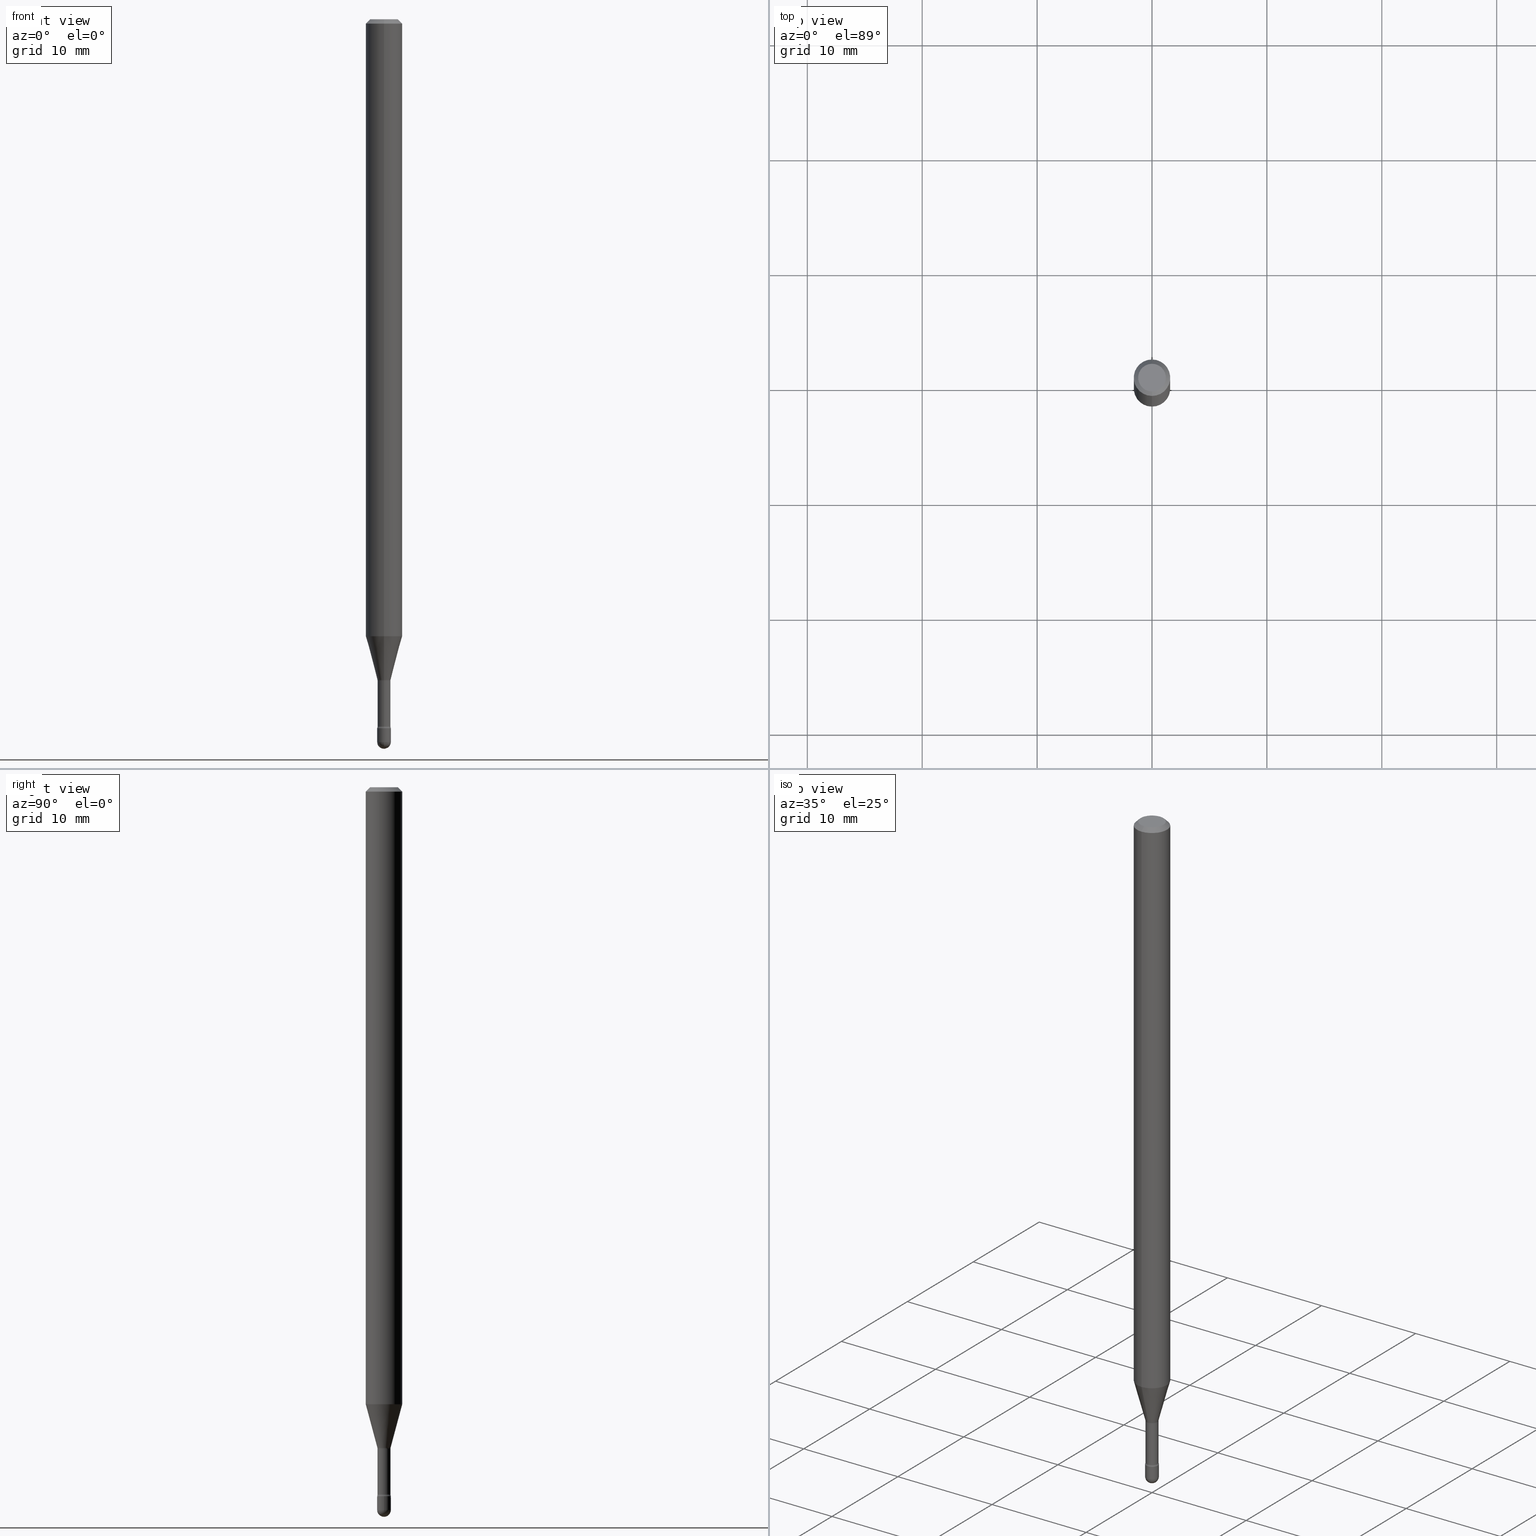
[diagram: canonical four-view strip — front | top / right | iso, engineering-drawing reading convention]
A machine part, canonical four-view strip (front | top / right | iso — engineering-drawing reading convention). The complete STEP part file that produces these views, byte-faithful:
ISO-10303-21;
HEADER;
FILE_DESCRIPTION (( 'STEP AP203' ),
    '1' );
FILE_NAME ('09474.STEP',
    '2024-04-09T23:35:45',
    ( '' ),
    ( '' ),
    'SwSTEP 2.0',
    'SolidWorks 2023',
    '' );
FILE_SCHEMA (( 'CONFIG_CONTROL_DESIGN' ));
ENDSEC;

DATA;
#1 = CARTESIAN_POINT ( 'NONE',  ( 2.023465601364097511E-45, -2.889165055145571576E-31, -8.274621583700891195E-17 ) ) ;
#2 = EDGE_CURVE ( 'NONE', #538, #33, #144, .T. ) ;
#3 = PERSON_AND_ORGANIZATION ( #182, #480 ) ;
#4 = CIRCLE ( 'NONE', #208, 0.02350000000000000352 ) ;
#5 = VECTOR ( 'NONE', #119, 39.37007874015749564 ) ;
#6 = APPROVAL_PERSON_ORGANIZATION ( #193, #449, #15 ) ;
#7 = CARTESIAN_POINT ( 'NONE',  ( 6.056203498517491033E-29, -8.646653535645050331E-15, -2.476500000000000146 ) ) ;
#8 = DATE_TIME_ROLE ( 'classification_date' ) ;
#9 = DIRECTION ( 'NONE',  ( 4.937700262164548042E-15, 0.7071067811865451302, -0.7071067811865499042 ) ) ;
#10 = SHAPE_DEFINITION_REPRESENTATION ( #338, #107 ) ;
#11 = ORIENTED_EDGE ( 'NONE', *, *, #500, .T. ) ;
#12 = VECTOR ( 'NONE', #517, 39.37007874015748143 ) ;
#13 = APPROVAL_PERSON_ORGANIZATION ( #224, #380, #561 ) ;
#14 = DIRECTION ( 'NONE',  ( -2.445468806185136597E-29, 3.491481338843145583E-15, 1.000000000000000000 ) ) ;
#15 = APPROVAL_ROLE ( '' ) ;
#16 = ORIENTED_EDGE ( 'NONE', *, *, #367, .F. ) ;
#17 = DIRECTION ( 'NONE',  ( -2.445456806742390166E-29, 3.491498522728124281E-15, 1.000000000000000000 ) ) ;
#18 = ORIENTED_EDGE ( 'NONE', *, *, #249, .T. ) ;
#19 = DIRECTION ( 'NONE',  ( -2.445456806742390166E-29, 3.491498522728124281E-15, 1.000000000000000000 ) ) ;
#20 = ORIENTED_EDGE ( 'NONE', *, *, #464, .T. ) ;
#21 = ADVANCED_FACE ( 'NONE', ( #213 ), #186, .F. ) ;
#22 = CIRCLE ( 'NONE', #518, 0.02349999999999995148 ) ;
#23 = AXIS2_PLACEMENT_3D ( 'NONE', #477, #309, #88 ) ;
#24 = DIRECTION ( 'NONE',  ( -6.982962677686265922E-15, -1.000000000000000000, 3.483106191921935554E-15 ) ) ;
#25 = LINE ( 'NONE', #451, #334 ) ;
#26 = CARTESIAN_POINT ( 'NONE',  ( 5.543816127150929473E-29, -7.915100166057801279E-15, -2.266974787463810870 ) ) ;
#27 = ORIENTED_EDGE ( 'NONE', *, *, #277, .F. ) ;
#28 = AXIS2_PLACEMENT_3D ( 'NONE', #499, #378, #289 ) ;
#29 = LINE ( 'NONE', #327, #274 ) ;
#30 = DIRECTION ( 'NONE',  ( -2.445468806185136877E-29, 3.491481338843145188E-15, 1.000000000000000000 ) ) ;
#31 = ORIENTED_EDGE ( 'NONE', *, *, #2, .F. ) ;
#32 = CC_DESIGN_PERSON_AND_ORGANIZATION_ASSIGNMENT ( #565, #488, ( #469 ) ) ;
#33 = VERTEX_POINT ( 'NONE', #136 ) ;
#34 = CARTESIAN_POINT ( 'NONE',  ( 5.940043730223697314E-29, -8.480808172050001970E-15, -2.429000000000000270 ) ) ;
#35 = ORIENTED_EDGE ( 'NONE', *, *, #249, .F. ) ;
#36 = PERSON_AND_ORGANIZATION_ROLE ( 'design_supplier' ) ;
#37 = ORIENTED_EDGE ( 'NONE', *, *, #355, .T. ) ;
#38 = ADVANCED_FACE ( 'NONE', ( #562 ), #439, .T. ) ;
#39 = FACE_OUTER_BOUND ( 'NONE', #150, .T. ) ;
#40 = AXIS2_PLACEMENT_3D ( 'NONE', #205, #168, #329 ) ;
#41 = DATE_AND_TIME ( #299, #139 ) ;
#42 = EDGE_LOOP ( 'NONE', ( #110, #207, #438, #134 ) ) ;
#43 = APPLICATION_PROTOCOL_DEFINITION ( 'international standard', 'config_control_design', 1994, #462 ) ;
#44 =( CONVERSION_BASED_UNIT ( 'INCH', #436 ) LENGTH_UNIT ( ) NAMED_UNIT ( #308 ) );
#45 = DATE_AND_TIME ( #428, #393 ) ;
#46 = CARTESIAN_POINT ( 'NONE',  ( 5.924540425438438156E-29, -8.458756697819860632E-15, -2.422672283192177645 ) ) ;
#47 = ADVANCED_FACE ( 'NONE', ( #459 ), #72, .T. ) ;
#48 = AXIS2_PLACEMENT_3D ( 'NONE', #180, #348, #524 ) ;
#49 = CIRCLE ( 'NONE', #316, 0.01500000000000002720 ) ;
#50 = LOCAL_TIME ( 19, 35, 45.00000000000000000, #323 ) ;
#51 = LINE ( 'NONE', #151, #344 ) ;
#52 = DATE_AND_TIME ( #537, #50 ) ;
#53 = CARTESIAN_POINT ( 'NONE',  ( 3.023754139721258091E-16, 0.02261111260565609044, -2.263092501787272948 ) ) ;
#54 = APPROVAL_DATE_TIME ( #52, #449 ) ;
#55 = ORIENTED_EDGE ( 'NONE', *, *, #465, .F. ) ;
#56 = CIRCLE ( 'NONE', #210, 0.04749999999999999362 ) ;
#57 = LOCAL_TIME ( 19, 35, 45.00000000000000000, #313 ) ;
#58 = PERSON_AND_ORGANIZATION_ROLE ( 'classification_officer' ) ;
#59 = CARTESIAN_POINT ( 'NONE',  ( 0.02350000000000000699, -8.727830476773153796E-15, -2.476500000000000590 ) ) ;
#60 = VERTEX_POINT ( 'NONE', #53 ) ;
#61 = ORIENTED_EDGE ( 'NONE', *, *, #99, .F. ) ;
#62 = FACE_OUTER_BOUND ( 'NONE', #406, .T. ) ;
#63 = CC_DESIGN_DATE_AND_TIME_ASSIGNMENT ( #394, #8, ( #227 ) ) ;
#64 = EDGE_LOOP ( 'NONE', ( #113, #347, #340, #132 ) ) ;
#65 = DIRECTION ( 'NONE',  ( -2.445456806742390166E-29, 3.491498522728124281E-15, 1.000000000000000000 ) ) ;
#66 = CARTESIAN_POINT ( 'NONE',  ( -1.543234751768667333E-16, -0.02210000000000003628, 5.552355162435376952E-16 ) ) ;
#67 = AXIS2_PLACEMENT_3D ( 'NONE', #165, #290, #154 ) ;
#68 = CARTESIAN_POINT ( 'NONE',  ( 5.534294962783350843E-29, -7.901584126787359375E-15, -2.263092501787272948 ) ) ;
#69 = EDGE_LOOP ( 'NONE', ( #61, #446, #493, #167 ) ) ;
#70 = DIRECTION ( 'NONE',  ( -2.445456806742389886E-29, 3.491498522728124281E-15, 1.000000000000000000 ) ) ;
#71 = EDGE_CURVE ( 'NONE', #221, #206, #4, .T. ) ;
#72 = CYLINDRICAL_SURFACE ( 'NONE', #226, 0.06250000000000000000 ) ;
#73 = CARTESIAN_POINT ( 'NONE',  ( 5.543788924716759696E-29, -7.915139121491799503E-15, -2.266974787463810870 ) ) ;
#74 = ORIENTED_EDGE ( 'NONE', *, *, #293, .F. ) ;
#75 = AXIS2_PLACEMENT_3D ( 'NONE', #236, #17, #285 ) ;
#76 = AXIS2_PLACEMENT_3D ( 'NONE', #314, #189, #426 ) ;
#77 = DIRECTION ( 'NONE',  ( -6.982962677686266711E-15, -1.000000000000000000, 3.491498522728124676E-15 ) ) ;
#78 = VERTEX_POINT ( 'NONE', #59 ) ;
#79 = FACE_OUTER_BOUND ( 'NONE', #42, .T. ) ;
#80 = DIRECTION ( 'NONE',  ( -2.445456806742390166E-29, 3.491498522728124281E-15, 1.000000000000000000 ) ) ;
#81 = CARTESIAN_POINT ( 'NONE',  ( 5.924540425438438156E-29, -8.458756697819860632E-15, -2.422672283192177645 ) ) ;
#82 = DIRECTION ( 'NONE',  ( 7.105427357601001859E-15, 1.000000000000000000, 0.000000000000000000 ) ) ;
#83 = CARTESIAN_POINT ( 'NONE',  ( -2.590679153421016779E-16, -0.03710000000000852199, -2.422672283192177645 ) ) ;
#84 = DIRECTION ( 'NONE',  ( -2.445456806742390166E-29, 3.491498522728124281E-15, 1.000000000000000000 ) ) ;
#85 = EDGE_CURVE ( 'NONE', #60, #381, #375, .T. ) ;
#86 = DIRECTION ( 'NONE',  ( -2.445456806742390166E-29, 3.491498522728124281E-15, 1.000000000000000000 ) ) ;
#87 = DIRECTION ( 'NONE',  ( 1.000000000000000000, -7.105427357601001070E-15, 4.926315718983979931E-29 ) ) ;
#88 = DIRECTION ( 'NONE',  ( 6.982962677686265922E-15, 1.000000000000000000, 0.000000000000000000 ) ) ;
#89 = CLOSED_SHELL ( 'NONE', ( #387, #372, #166, #265, #548, #501, #38, #47, #528, #346, #473, #21, #140, #269 ) ) ;
#90 = AXIS2_PLACEMENT_3D ( 'NONE', #270, #310, #425 ) ;
#91 = EDGE_CURVE ( 'NONE', #60, #155, #448, .T. ) ;
#92 = DIRECTION ( 'NONE',  ( -6.982962677686265922E-15, -1.000000000000000000, 3.483106191921935554E-15 ) ) ;
#93 = PLANE ( 'NONE',  #145 ) ;
#94 = ADVANCED_FACE ( 'NONE', ( #388 ), #147, .T. ) ;
#95 = EDGE_CURVE ( 'NONE', #60, #412, #525, .T. ) ;
#96 = CIRCLE ( 'NONE', #219, 0.02350000000000000699 ) ;
#97 = CIRCLE ( 'NONE', #220, 0.01499999999999999424 ) ;
#98 = CARTESIAN_POINT ( 'NONE',  ( -1.169113584055446105E-44, 1.669184350826100908E-30, 4.780733988912460139E-16 ) ) ;
#99 = EDGE_CURVE ( 'NONE', #538, #298, #549, .T. ) ;
#100 = CARTESIAN_POINT ( 'NONE',  ( -1.543234751768077413E-16, -0.02210000000000852949, -2.422672283192177645 ) ) ;
#101 = EDGE_LOOP ( 'NONE', ( #519, #376, #204, #74 ) ) ;
#102 = CARTESIAN_POINT ( 'NONE',  ( 5.940014583577266287E-29, -8.480849911706614347E-15, -2.429000000000000270 ) ) ;
#103 = ORIENTED_EDGE ( 'NONE', *, *, #251, .F. ) ;
#104 = VECTOR ( 'NONE', #30, 39.37007874015748143 ) ;
#105 = EDGE_CURVE ( 'NONE', #298, #556, #115, .T. ) ;
#106 = AXIS2_PLACEMENT_3D ( 'NONE', #34, #124, #481 ) ;
#107 = ADVANCED_BREP_SHAPE_REPRESENTATION ( '09474', ( #536, #354, #90 ), #526 ) ;
#108 = LOCAL_TIME ( 19, 35, 45.00000000000000000, #152 ) ;
#109 = DIRECTION ( 'NONE',  ( -6.982962677686265922E-15, -1.000000000000000000, 3.491498522728123492E-15 ) ) ;
#110 = ORIENTED_EDGE ( 'NONE', *, *, #171, .F. ) ;
#111 = DIRECTION ( 'NONE',  ( -2.445456806742390166E-29, 3.491498522728124281E-15, 1.000000000000000000 ) ) ;
#112 = DIRECTION ( 'NONE',  ( -2.445456806742390166E-29, 3.491498522728124281E-15, 1.000000000000000000 ) ) ;
#113 = ORIENTED_EDGE ( 'NONE', *, *, #359, .T. ) ;
#114 = CARTESIAN_POINT ( 'NONE',  ( 5.170246277632214068E-29, -7.381813978771733326E-15, -2.114225147374217961 ) ) ;
#115 = LINE ( 'NONE', #66, #12 ) ;
#116 = CIRCLE ( 'NONE', #365, 0.06250000000000000000 ) ;
#117 = SPHERICAL_SURFACE ( 'NONE', #452, 0.02349999999999995148 ) ;
#118 = CARTESIAN_POINT ( 'NONE',  ( 6.114676835852627231E-29, -8.727264387118866723E-15, -2.500000000000000000 ) ) ;
#119 = DIRECTION ( 'NONE',  ( -1.807323732225328562E-15, -0.2588190451025179639, 0.9659258262890689783 ) ) ;
#120 = CARTESIAN_POINT ( 'NONE',  ( 2.636113549670568339E-16, 0.03709999999999160497, -2.422672283192177645 ) ) ;
#121 = CYLINDRICAL_SURFACE ( 'NONE', #190, 0.02350000000000000352 ) ;
#122 = DIRECTION ( 'NONE',  ( -2.445456806742390166E-29, 3.491498522728124281E-15, 1.000000000000000000 ) ) ;
#123 = EDGE_CURVE ( 'NONE', #328, #302, #25, .T. ) ;
#124 = DIRECTION ( 'NONE',  ( -2.438088387897960049E-29, 3.491481338843145188E-15, 1.000000000000000000 ) ) ;
#125 = EDGE_LOOP ( 'NONE', ( #11, #20 ) ) ;
#126 = DIRECTION ( 'NONE',  ( -2.445456806742389886E-29, 3.491498522728124281E-15, 1.000000000000000000 ) ) ;
#127 = AXIS2_PLACEMENT_3D ( 'NONE', #476, #86, #291 ) ;
#128 = EDGE_CURVE ( 'NONE', #281, #78, #162, .T. ) ;
#129 = AXIS2_PLACEMENT_3D ( 'NONE', #81, #559, #422 ) ;
#130 = ORIENTED_EDGE ( 'NONE', *, *, #293, .T. ) ;
#131 = DIRECTION ( 'NONE',  ( -2.445456806742390166E-29, 3.491498522728124281E-15, 1.000000000000000000 ) ) ;
#132 = ORIENTED_EDGE ( 'NONE', *, *, #355, .F. ) ;
#133 = EDGE_CURVE ( 'NONE', #412, #556, #494, .T. ) ;
#134 = ORIENTED_EDGE ( 'NONE', *, *, #133, .F. ) ;
#135 = APPROVAL_DATE_TIME ( #45, #380 ) ;
#136 = CARTESIAN_POINT ( 'NONE',  ( 1.669775429036828812E-16, 0.02349999999999151726, -2.429000000000000270 ) ) ;
#137 = FACE_OUTER_BOUND ( 'NONE', #64, .T. ) ;
#138 = CIRCLE ( 'NONE', #402, 0.02350000000000000352 ) ;
#139 = LOCAL_TIME ( 19, 35, 45.00000000000000000, #527 ) ;
#140 = ADVANCED_FACE ( 'NONE', ( #79 ), #337, .T. ) ;
#141 = APPROVAL_DATE_TIME ( #41, #237 ) ;
#142 = CARTESIAN_POINT ( 'NONE',  ( 1.620037437533623579E-16, 0.02209999999999160900, -2.422672283192177645 ) ) ;
#143 = ADVANCED_FACE ( 'NONE', ( #514 ), #121, .T. ) ;
#144 = CIRCLE ( 'NONE', #306, 0.01499999999999999424 ) ;
#145 = AXIS2_PLACEMENT_3D ( 'NONE', #492, #70, #370 ) ;
#146 =( NAMED_UNIT ( * ) PLANE_ANGLE_UNIT ( ) SI_UNIT ( $, .RADIAN. ) );
#147 = CYLINDRICAL_SURFACE ( 'NONE', #432, 0.02350000000000000352 ) ;
#148 = CALENDAR_DATE ( 2024, 9, 4 ) ;
#149 = PRODUCT_DEFINITION ( 'UNKNOWN', '', #469, #163 ) ;
#150 = EDGE_LOOP ( 'NONE', ( #194, #262 ) ) ;
#151 = CARTESIAN_POINT ( 'NONE',  ( 4.364351673553919652E-16, 0.06249999999999995143, -0.01500000000000030129 ) ) ;
#152 = COORDINATED_UNIVERSAL_TIME_OFFSET ( 5, 0, .BEHIND. ) ;
#153 = AXIS2_PLACEMENT_3D ( 'NONE', #217, #484, #222 ) ;
#154 = DIRECTION ( 'NONE',  ( 6.982962677686265922E-15, 1.000000000000000000, 0.000000000000000000 ) ) ;
#155 = VERTEX_POINT ( 'NONE', #545 ) ;
#156 = PRODUCT_RELATED_PRODUCT_CATEGORY ( 'detail', '', ( #196 ) ) ;
#157 = DIRECTION ( 'NONE',  ( -6.982962677686265922E-15, -1.000000000000000000, 0.000000000000000000 ) ) ;
#158 = ORIENTED_EDGE ( 'NONE', *, *, #464, .F. ) ;
#159 = DIRECTION ( 'NONE',  ( -6.982962677686265922E-15, -1.000000000000000000, 0.000000000000000000 ) ) ;
#160 = ADVANCED_FACE ( 'NONE', ( #504 ), #117, .T. ) ;
#161 = DIRECTION ( 'NONE',  ( -2.445456806742390166E-29, 3.491498522728124281E-15, 1.000000000000000000 ) ) ;
#162 = CIRCLE ( 'NONE', #28, 0.02350000000000000699 ) ;
#163 = DESIGN_CONTEXT ( 'detailed design', #434, 'design' ) ;
#164 = CC_DESIGN_APPROVAL ( #380, ( #149 ) ) ;
#165 = CARTESIAN_POINT ( 'NONE',  ( 6.056203498517491033E-29, -8.646653535645050331E-15, -2.476500000000000146 ) ) ;
#166 = ADVANCED_FACE ( 'NONE', ( #248 ), #392, .F. ) ;
#167 = ORIENTED_EDGE ( 'NONE', *, *, #513, .F. ) ;
#168 = DIRECTION ( 'NONE',  ( -2.445468806185136597E-29, 3.491481338843145583E-15, 1.000000000000000000 ) ) ;
#169 = DIRECTION ( 'NONE',  ( -2.445456806742390166E-29, 3.491498522728124281E-15, 1.000000000000000000 ) ) ;
#170 = ORIENTED_EDGE ( 'NONE', *, *, #502, .T. ) ;
#171 = EDGE_CURVE ( 'NONE', #538, #412, #267, .T. ) ;
#172 = CARTESIAN_POINT ( 'NONE',  ( 5.170246277632214068E-29, -7.381813978771733326E-15, -2.114225147374217961 ) ) ;
#173 = EDGE_LOOP ( 'NONE', ( #472, #516, #130, #382 ) ) ;
#174 = DIRECTION ( 'NONE',  ( -6.982962677686266711E-15, -1.000000000000000000, 3.491498522728124676E-15 ) ) ;
#175 = CC_DESIGN_PERSON_AND_ORGANIZATION_ASSIGNMENT ( #431, #36, ( #469 ) ) ;
#176 = CONICAL_SURFACE ( 'NONE', #192, 0.02261111260566398690, 0.2617993877991501295 ) ;
#177 = DIRECTION ( 'NONE',  ( -6.982962677686265922E-15, -1.000000000000000000, 3.491498522728124281E-15 ) ) ;
#178 = ORIENTED_EDGE ( 'NONE', *, *, #311, .F. ) ;
#179 = PERSON_AND_ORGANIZATION_ROLE ( 'creator' ) ;
#180 = CARTESIAN_POINT ( 'NONE',  ( 5.924569496155794395E-29, -8.458715066898005273E-15, -2.422672283192177645 ) ) ;
#181 = ORIENTED_EDGE ( 'NONE', *, *, #218, .T. ) ;
#182 = PERSON ( 'UNSPECIFIED', 'UNSPECIFIED', 'UNSPECIFIED', ('UNSPECIFIED'), ('UNSPECIFIED'), ('UNSPECIFIED') ) ;
#183 = DIRECTION ( 'NONE',  ( -1.000000000000000000, 7.105427357601001070E-15, -4.926315508542082329E-29 ) ) ;
#184 = DIRECTION ( 'NONE',  ( -2.445456806742390166E-29, 3.491498522728124281E-15, 1.000000000000000000 ) ) ;
#185 = LINE ( 'NONE', #215, #413 ) ;
#186 = TOROIDAL_SURFACE ( 'NONE', #48, 0.03710000000000006348, 0.01499999999999999424 ) ;
#187 = DATE_AND_TIME ( #418, #57 ) ;
#188 = PERSON_AND_ORGANIZATION_ROLE ( 'design_owner' ) ;
#189 = DIRECTION ( 'NONE',  ( 2.445456806742390166E-29, -3.491498522728124281E-15, -1.000000000000000000 ) ) ;
#190 = AXIS2_PLACEMENT_3D ( 'NONE', #257, #368, #456 ) ;
#191 = ORIENTED_EDGE ( 'NONE', *, *, #211, .F. ) ;
#192 = AXIS2_PLACEMENT_3D ( 'NONE', #305, #122, #414 ) ;
#193 = PERSON_AND_ORGANIZATION ( #182, #480 ) ;
#194 = ORIENTED_EDGE ( 'NONE', *, *, #71, .T. ) ;
#195 = CYLINDRICAL_SURFACE ( 'NONE', #263, 0.02210000000000003628 ) ;
#196 = PRODUCT ( '09474', '09474', '', ( #482 ) ) ;
#197 = LINE ( 'NONE', #555, #104 ) ;
#198 = AXIS2_PLACEMENT_3D ( 'NONE', #333, #161, #553 ) ;
#199 = CIRCLE ( 'NONE', #522, 0.06250000000000000000 ) ;
#200 = CC_DESIGN_SECURITY_CLASSIFICATION ( #227, ( #469 ) ) ;
#201 = DIRECTION ( 'NONE',  ( 2.445456806742389886E-29, -3.491498522728124281E-15, -1.000000000000000000 ) ) ;
#202 = EDGE_CURVE ( 'NONE', #471, #281, #22, .T. ) ;
#203 = CARTESIAN_POINT ( 'NONE',  ( -4.364351673553400976E-16, -0.06250000000000741074, -2.114225147374217517 ) ) ;
#204 = ORIENTED_EDGE ( 'NONE', *, *, #133, .T. ) ;
#205 = CARTESIAN_POINT ( 'NONE',  ( 6.056203498517492154E-29, -8.646653535645053486E-15, -2.476500000000000590 ) ) ;
#206 = VERTEX_POINT ( 'NONE', #304 ) ;
#207 = ORIENTED_EDGE ( 'NONE', *, *, #99, .T. ) ;
#208 = AXIS2_PLACEMENT_3D ( 'NONE', #445, #397, #362 ) ;
#209 = DIRECTION ( 'NONE',  ( -6.982962677686265133E-15, -1.000000000000000000, 0.000000000000000000 ) ) ;
#210 = AXIS2_PLACEMENT_3D ( 'NONE', #1, #184, #77 ) ;
#211 = EDGE_CURVE ( 'NONE', #206, #221, #547, .T. ) ;
#212 = DIRECTION ( 'NONE',  ( -2.445468806185136877E-29, 3.491481338843145188E-15, 1.000000000000000000 ) ) ;
#213 = FACE_OUTER_BOUND ( 'NONE', #534, .T. ) ;
#214 = ORIENTED_EDGE ( 'NONE', *, *, #374, .T. ) ;
#215 = CARTESIAN_POINT ( 'NONE',  ( 4.440892098500625669E-16, 0.06250000000000000000, 2.598547412207382957E-16 ) ) ;
#216 = EDGE_LOOP ( 'NONE', ( #55, #557, #366, #441 ) ) ;
#217 = CARTESIAN_POINT ( 'NONE',  ( 5.924569496155794395E-29, -8.458715066898005273E-15, -2.422672283192177645 ) ) ;
#218 = EDGE_CURVE ( 'NONE', #254, #369, #51, .T. ) ;
#219 = AXIS2_PLACEMENT_3D ( 'NONE', #253, #551, #411 ) ;
#220 = AXIS2_PLACEMENT_3D ( 'NONE', #83, #341, #209 ) ;
#221 = VERTEX_POINT ( 'NONE', #319 ) ;
#222 = DIRECTION ( 'NONE',  ( -6.982962677686265922E-15, -1.000000000000000000, 3.491498522728124281E-15 ) ) ;
#223 = CARTESIAN_POINT ( 'NONE',  ( -1.640996229255678655E-16, -0.02350000000000847938, -2.429000000000000270 ) ) ;
#224 = PERSON_AND_ORGANIZATION ( #182, #480 ) ;
#225 = CARTESIAN_POINT ( 'NONE',  ( 1.570299446029823742E-16, 0.02210000000000003628, 4.009112815389543820E-16 ) ) ;
#226 = AXIS2_PLACEMENT_3D ( 'NONE', #292, #169, #336 ) ;
#227 = SECURITY_CLASSIFICATION ( '', '', #228 ) ;
#228 = SECURITY_CLASSIFICATION_LEVEL ( 'unclassified' ) ;
#229 = CARTESIAN_POINT ( 'NONE',  ( 5.940014583577266287E-29, -8.480849911706614347E-15, -2.429000000000000270 ) ) ;
#230 = CARTESIAN_POINT ( 'NONE',  ( 0.000000000000000000, 0.000000000000000000, 0.000000000000000000 ) ) ;
#231 =( LENGTH_UNIT ( ) NAMED_UNIT ( * ) SI_UNIT ( $, .METRE. ) );
#232 = CARTESIAN_POINT ( 'NONE',  ( -4.364351673553912750E-16, -0.06250000000000005551, -0.01499999999999986587 ) ) ;
#233 = AXIS2_PLACEMENT_3D ( 'NONE', #421, #87, #312 ) ;
#234 = VECTOR ( 'NONE', #410, 39.37007874015748143 ) ;
#235 = EDGE_CURVE ( 'NONE', #454, #33, #138, .T. ) ;
#236 = CARTESIAN_POINT ( 'NONE',  ( 5.534294962783350843E-29, -7.901584126787359375E-15, -2.263092501787272948 ) ) ;
#237 = APPROVAL ( #303, 'UNSPECIFIED' ) ;
#238 = EDGE_LOOP ( 'NONE', ( #158, #455, #170, #468 ) ) ;
#239 = DIRECTION ( 'NONE',  ( -2.445456806742390166E-29, 3.491498522728124281E-15, 1.000000000000000000 ) ) ;
#240 = ORIENTED_EDGE ( 'NONE', *, *, #282, .T. ) ;
#241 = FACE_OUTER_BOUND ( 'NONE', #173, .T. ) ;
#242 = EDGE_LOOP ( 'NONE', ( #16, #326, #407, #521, #191 ) ) ;
#243 = CONICAL_SURFACE ( 'NONE', #531, 0.06250000000000000000, 0.7853981633974483900 ) ;
#244 = AXIS2_PLACEMENT_3D ( 'NONE', #98, #532, #275 ) ;
#245 = CARTESIAN_POINT ( 'NONE',  ( 1.640996229256876491E-16, 0.02349999999999132991, -2.476500000000000590 ) ) ;
#246 = ORIENTED_EDGE ( 'NONE', *, *, #513, .T. ) ;
#247 = DIRECTION ( 'NONE',  ( -6.982962677686265922E-15, -1.000000000000000000, 4.370956789862821150E-15 ) ) ;
#248 = FACE_OUTER_BOUND ( 'NONE', #69, .T. ) ;
#249 = EDGE_CURVE ( 'NONE', #78, #400, #96, .T. ) ;
#250 = ORIENTED_EDGE ( 'NONE', *, *, #105, .F. ) ;
#251 = EDGE_CURVE ( 'NONE', #78, #221, #197, .T. ) ;
#252 = CARTESIAN_POINT ( 'NONE',  ( -4.287811248607203282E-16, -0.06250000000000005551, -0.01499999999999986587 ) ) ;
#253 = CARTESIAN_POINT ( 'NONE',  ( 6.056203498517492154E-29, -8.646653535645053486E-15, -2.476500000000000590 ) ) ;
#254 = VERTEX_POINT ( 'NONE', #339 ) ;
#255 = AXIS2_PLACEMENT_3D ( 'NONE', #330, #201, #544 ) ;
#256 = ORIENTED_EDGE ( 'NONE', *, *, #529, .F. ) ;
#257 = CARTESIAN_POINT ( 'NONE',  ( 0.000000000000000000, 0.000000000000000000, 0.000000000000000000 ) ) ;
#258 = PERSON_AND_ORGANIZATION ( #182, #480 ) ;
#259 = CARTESIAN_POINT ( 'NONE',  ( -1.669775429035627771E-16, -0.02350000000000862510, -2.476500000000000590 ) ) ;
#260 = FACE_OUTER_BOUND ( 'NONE', #416, .T. ) ;
#261 = APPROVAL_STATUS ( 'not_yet_approved' ) ;
#262 = ORIENTED_EDGE ( 'NONE', *, *, #211, .T. ) ;
#263 = AXIS2_PLACEMENT_3D ( 'NONE', #554, #239, #109 ) ;
#264 = CARTESIAN_POINT ( 'NONE',  ( -3.773273898774340269E-16, -0.04749999999999999362, 8.309996399257698746E-17 ) ) ;
#265 = ADVANCED_FACE ( 'NONE', ( #515 ), #243, .T. ) ;
#266 = COORDINATED_UNIVERSAL_TIME_OFFSET ( 5, 0, .BEHIND. ) ;
#267 = LINE ( 'NONE', #225, #307 ) ;
#268 = EDGE_CURVE ( 'NONE', #351, #281, #288, .T. ) ;
#269 = ADVANCED_FACE ( 'NONE', ( #241 ), #360, .F. ) ;
#270 = CARTESIAN_POINT ( 'NONE',  ( 0.000000000000000000, 0.000000000000000000, 0.000000000000000000 ) ) ;
#271 = DIRECTION ( 'NONE',  ( -2.445456806742389886E-29, 3.491498522728124281E-15, 1.000000000000000000 ) ) ;
#272 = AXIS2_PLACEMENT_3D ( 'NONE', #539, #535, #442 ) ;
#273 = DIRECTION ( 'NONE',  ( 1.000000000000000000, -6.982962677686265922E-15, 4.876176775795935793E-29 ) ) ;
#274 = VECTOR ( 'NONE', #212, 39.37007874015748143 ) ;
#275 = DIRECTION ( 'NONE',  ( -6.982962677686265922E-15, -1.000000000000000000, 3.491498522728124676E-15 ) ) ;
#276 = EDGE_CURVE ( 'NONE', #155, #328, #505, .T. ) ;
#277 = EDGE_CURVE ( 'NONE', #556, #412, #563, .T. ) ;
#278 = AXIS2_PLACEMENT_3D ( 'NONE', #46, #485, #389 ) ;
#279 = CC_DESIGN_APPROVAL ( #237, ( #469 ) ) ;
#280 = ORIENTED_EDGE ( 'NONE', *, *, #91, .F. ) ;
#281 = VERTEX_POINT ( 'NONE', #259 ) ;
#282 = EDGE_CURVE ( 'NONE', #328, #155, #199, .T. ) ;
#283 = CARTESIAN_POINT ( 'NONE',  ( 3.668185210113605428E-31, -5.237247784092215166E-17, -0.01500000000000008271 ) ) ;
#284 = CARTESIAN_POINT ( 'NONE',  ( -0.02350000000000000699, -8.396753310943903641E-15, -2.476500000000000590 ) ) ;
#285 = DIRECTION ( 'NONE',  ( -6.982962677686265922E-15, -1.000000000000000000, 0.000000000000000000 ) ) ;
#286 = EDGE_LOOP ( 'NONE', ( #546, #178 ) ) ;
#287 = DIRECTION ( 'NONE',  ( -2.445456806742390166E-29, 3.491498522728124281E-15, 1.000000000000000000 ) ) ;
#288 = CIRCLE ( 'NONE', #40, 0.02350000000000000699 ) ;
#289 = DIRECTION ( 'NONE',  ( 1.000000000000000000, -6.982962677686227268E-15, 0.000000000000000000 ) ) ;
#290 = DIRECTION ( 'NONE',  ( -1.000000000000000000, 6.982962677686265922E-15, -4.883557194083111780E-29 ) ) ;
#291 = DIRECTION ( 'NONE',  ( -6.982962677686265922E-15, -1.000000000000000000, 0.000000000000000000 ) ) ;
#292 = CARTESIAN_POINT ( 'NONE',  ( -1.169113584055446105E-44, 1.669184350826100908E-30, 4.780733988912460139E-16 ) ) ;
#293 = EDGE_CURVE ( 'NONE', #381, #556, #49, .T. ) ;
#294 = CARTESIAN_POINT ( 'NONE',  ( 1.606616180941370852E-16, 0.02261111260565608697, -2.263092501787272948 ) ) ;
#295 = CARTESIAN_POINT ( 'NONE',  ( 3.668185210113605428E-31, -5.237247784092215166E-17, -0.01500000000000008271 ) ) ;
#296 = ORIENTED_EDGE ( 'NONE', *, *, #202, .T. ) ;
#297 = AXIS2_PLACEMENT_3D ( 'NONE', #229, #358, #506 ) ;
#298 = VERTEX_POINT ( 'NONE', #100 ) ;
#299 = CALENDAR_DATE ( 2024, 9, 4 ) ;
#300 = EDGE_LOOP ( 'NONE', ( #240, #560, #401, #342 ) ) ;
#301 = CARTESIAN_POINT ( 'NONE',  ( 3.668185210113605428E-31, -5.237247784092215166E-17, -0.01500000000000008271 ) ) ;
#302 = VERTEX_POINT ( 'NONE', #232 ) ;
#303 = APPROVAL_STATUS ( 'not_yet_approved' ) ;
#304 = CARTESIAN_POINT ( 'NONE',  ( -0.02350000000000000352, -8.396753310943903641E-15, -2.429000000000000270 ) ) ;
#305 = CARTESIAN_POINT ( 'NONE',  ( 5.534294962783350843E-29, -7.901584126787359375E-15, -2.263092501787272948 ) ) ;
#306 = AXIS2_PLACEMENT_3D ( 'NONE', #120, #566, #82 ) ;
#307 = VECTOR ( 'NONE', #271, 39.37007874015748143 ) ;
#308 = DIMENSIONAL_EXPONENTS ( 1.000000000000000000, 0.000000000000000000, 0.000000000000000000, 0.000000000000000000, 0.000000000000000000, 0.000000000000000000, 0.000000000000000000 ) ;
#309 = DIRECTION ( 'NONE',  ( 1.000000000000000000, -6.982962677686265922E-15, 4.883557194083112340E-29 ) ) ;
#310 = DIRECTION ( 'NONE',  ( 0.000000000000000000, 0.000000000000000000, 1.000000000000000000 ) ) ;
#311 = EDGE_CURVE ( 'NONE', #33, #454, #361, .T. ) ;
#312 = DIRECTION ( 'NONE',  ( 7.105427357601000281E-15, 1.000000000000000000, 0.000000000000000000 ) ) ;
#313 = COORDINATED_UNIVERSAL_TIME_OFFSET ( 5, 0, .BEHIND. ) ;
#314 = CARTESIAN_POINT ( 'NONE',  ( 3.668185210113605428E-31, -5.237247784092215166E-17, -0.01500000000000008271 ) ) ;
#315 = FACE_OUTER_BOUND ( 'NONE', #300, .T. ) ;
#316 = AXIS2_PLACEMENT_3D ( 'NONE', #384, #317, #324 ) ;
#317 = DIRECTION ( 'NONE',  ( -1.000000000000000000, 6.982962677686265922E-15, -4.883557194083112340E-29 ) ) ;
#318 = ORIENTED_EDGE ( 'NONE', *, *, #71, .F. ) ;
#319 = CARTESIAN_POINT ( 'NONE',  ( 0.02350000000000000352, -8.644907794975628038E-15, -2.429000000000000270 ) ) ;
#320 = DIRECTION ( 'NONE',  ( -2.445468806185136597E-29, 3.491481338843145583E-15, 1.000000000000000000 ) ) ;
#321 = ORIENTED_EDGE ( 'NONE', *, *, #409, .F. ) ;
#322 = CLOSED_SHELL ( 'NONE', ( #94, #160, #427, #350, #143 ) ) ;
#323 = COORDINATED_UNIVERSAL_TIME_OFFSET ( 5, 0, .BEHIND. ) ;
#324 = DIRECTION ( 'NONE',  ( -6.982962677686265133E-15, -1.000000000000000000, 0.000000000000000000 ) ) ;
#325 = CONICAL_SURFACE ( 'NONE', #76, 0.06250000000000000000, 0.7853981633974483900 ) ;
#326 = ORIENTED_EDGE ( 'NONE', *, *, #268, .T. ) ;
#327 = CARTESIAN_POINT ( 'NONE',  ( -0.02350000000000000352, 1.669775429036235687E-16, -1.155949746209903035E-30 ) ) ;
#328 = VERTEX_POINT ( 'NONE', #203 ) ;
#329 = DIRECTION ( 'NONE',  ( 1.000000000000000000, -6.982962677686227268E-15, 0.000000000000000000 ) ) ;
#330 = CARTESIAN_POINT ( 'NONE',  ( 3.316907271900976096E-16, 0.04749999999999999362, 3.181741169753270705E-17 ) ) ;
#331 = ORIENTED_EDGE ( 'NONE', *, *, #171, .T. ) ;
#332 = DIRECTION ( 'NONE',  ( 2.445456806742390166E-29, -3.491498522728124281E-15, -1.000000000000000000 ) ) ;
#333 = CARTESIAN_POINT ( 'NONE',  ( -1.169113584055446105E-44, 1.669184350826100908E-30, 4.780733988912460139E-16 ) ) ;
#334 = VECTOR ( 'NONE', #126, 39.37007874015748143 ) ;
#335 = CIRCLE ( 'NONE', #404, 0.02261111260566398690 ) ;
#336 = DIRECTION ( 'NONE',  ( -6.982962677686265922E-15, -1.000000000000000000, 3.491498522728124676E-15 ) ) ;
#337 = CYLINDRICAL_SURFACE ( 'NONE', #198, 0.02210000000000003628 ) ;
#338 = PRODUCT_DEFINITION_SHAPE ( 'NONE', 'NONE',  #149 ) ;
#339 = CARTESIAN_POINT ( 'NONE',  ( 3.840629472727447874E-16, 0.04749999999999999362, -2.485923956665947867E-16 ) ) ;
#340 = ORIENTED_EDGE ( 'NONE', *, *, #282, .F. ) ;
#341 = DIRECTION ( 'NONE',  ( -1.000000000000000000, 6.982962677686265922E-15, -4.883557194083112340E-29 ) ) ;
#342 = ORIENTED_EDGE ( 'NONE', *, *, #123, .F. ) ;
#343 = DIRECTION ( 'NONE',  ( 6.982962677686265922E-15, 1.000000000000000000, 0.000000000000000000 ) ) ;
#344 = VECTOR ( 'NONE', #9, 39.37007874015748143 ) ;
#345 = CIRCLE ( 'NONE', #453, 0.04749999999999999362 ) ;
#346 = ADVANCED_FACE ( 'NONE', ( #497 ), #447, .F. ) ;
#347 = ORIENTED_EDGE ( 'NONE', *, *, #91, .T. ) ;
#348 = DIRECTION ( 'NONE',  ( -2.445456806742390166E-29, 3.491498522728124281E-15, 1.000000000000000000 ) ) ;
#349 = DIRECTION ( 'NONE',  ( 1.839019923739599526E-15, 0.2588190451025248473, 0.9659258262890673130 ) ) ;
#350 = ADVANCED_FACE ( 'NONE', ( #457 ), #373, .T. ) ;
#351 = VERTEX_POINT ( 'NONE', #284 ) ;
#352 = DIRECTION ( 'NONE',  ( -7.105427357601001070E-15, -1.000000000000000000, 0.000000000000000000 ) ) ;
#353 = DIRECTION ( 'NONE',  ( -2.445456806742389886E-29, 3.491498522728124281E-15, 1.000000000000000000 ) ) ;
#354 = MANIFOLD_SOLID_BREP ( 'Body-Move/Copy2[2]', #89 ) ;
#355 = EDGE_CURVE ( 'NONE', #381, #328, #399, .T. ) ;
#356 = EDGE_CURVE ( 'NONE', #511, #302, #461, .T. ) ;
#357 = DATE_TIME_ROLE ( 'creation_date' ) ;
#358 = DIRECTION ( 'NONE',  ( -2.445456806742390166E-29, 3.491498522728124281E-15, 1.000000000000000000 ) ) ;
#359 = EDGE_CURVE ( 'NONE', #381, #60, #335, .T. ) ;
#360 = TOROIDAL_SURFACE ( 'NONE', #466, 0.03710000000000000103, 0.01500000000000002373 ) ;
#361 = CIRCLE ( 'NONE', #297, 0.02350000000000000352 ) ;
#362 = DIRECTION ( 'NONE',  ( 1.000000000000000000, -6.982962677686269866E-15, 0.000000000000000000 ) ) ;
#363 = CARTESIAN_POINT ( 'NONE',  ( 6.056203498517492154E-29, -8.646653535645053486E-15, -2.476500000000000590 ) ) ;
#364 = FACE_OUTER_BOUND ( 'NONE', #101, .T. ) ;
#365 = AXIS2_PLACEMENT_3D ( 'NONE', #283, #403, #24 ) ;
#366 = ORIENTED_EDGE ( 'NONE', *, *, #123, .T. ) ;
#367 = EDGE_CURVE ( 'NONE', #351, #206, #29, .T. ) ;
#368 = DIRECTION ( 'NONE',  ( -2.445468806185136597E-29, 3.491481338843145583E-15, 1.000000000000000000 ) ) ;
#369 = VERTEX_POINT ( 'NONE', #379 ) ;
#370 = DIRECTION ( 'NONE',  ( -6.982962677686265922E-15, -1.000000000000000000, 3.491498522728124281E-15 ) ) ;
#371 = CARTESIAN_POINT ( 'NONE',  ( 6.056203498517491033E-29, -8.646653535645050331E-15, -2.476500000000000146 ) ) ;
#372 = ADVANCED_FACE ( 'NONE', ( #62 ), #195, .T. ) ;
#373 = SPHERICAL_SURFACE ( 'NONE', #67, 0.02349999999999995148 ) ;
#374 = EDGE_CURVE ( 'NONE', #369, #302, #116, .T. ) ;
#375 = CIRCLE ( 'NONE', #75, 0.02261111260566398690 ) ;
#376 = ORIENTED_EDGE ( 'NONE', *, *, #95, .T. ) ;
#377 = APPROVAL_PERSON_ORGANIZATION ( #423, #237, #475 ) ;
#378 = DIRECTION ( 'NONE',  ( -2.445468806185136597E-29, 3.491481338843145583E-15, 1.000000000000000000 ) ) ;
#379 = CARTESIAN_POINT ( 'NONE',  ( 4.440892098501146810E-16, 0.06249999999999995837, -0.01500000000000030129 ) ) ;
#380 = APPROVAL ( #261, 'UNSPECIFIED' ) ;
#381 = VERTEX_POINT ( 'NONE', #444 ) ;
#382 = ORIENTED_EDGE ( 'NONE', *, *, #277, .T. ) ;
#383 = EDGE_LOOP ( 'NONE', ( #498, #408, #318, #103, #18 ) ) ;
#384 = CARTESIAN_POINT ( 'NONE',  ( -2.590679153421050798E-16, -0.03710000000000791831, -2.266974787463810870 ) ) ;
#385 = EDGE_LOOP ( 'NONE', ( #508, #395, #35, #503 ) ) ;
#386 = CIRCLE ( 'NONE', #129, 0.02210000000000007098 ) ;
#387 = ADVANCED_FACE ( 'NONE', ( #364 ), #533, .F. ) ;
#388 = FACE_OUTER_BOUND ( 'NONE', #383, .T. ) ;
#389 = DIRECTION ( 'NONE',  ( -6.982962677686265133E-15, -1.000000000000000000, 0.000000000000000000 ) ) ;
#390 = PERSON_AND_ORGANIZATION ( #182, #480 ) ;
#391 = CC_DESIGN_PERSON_AND_ORGANIZATION_ASSIGNMENT ( #3, #179, ( #149 ) ) ;
#392 = TOROIDAL_SURFACE ( 'NONE', #153, 0.03710000000000006348, 0.01499999999999999424 ) ;
#393 = LOCAL_TIME ( 19, 35, 45.00000000000000000, #266 ) ;
#394 = DATE_AND_TIME ( #148, #108 ) ;
#395 = ORIENTED_EDGE ( 'NONE', *, *, #415, .T. ) ;
#396 = ORIENTED_EDGE ( 'NONE', *, *, #85, .T. ) ;
#397 = DIRECTION ( 'NONE',  ( -2.445468806185136597E-29, 3.491481338843145583E-15, 1.000000000000000000 ) ) ;
#398 = ORIENTED_EDGE ( 'NONE', *, *, #415, .F. ) ;
#399 = LINE ( 'NONE', #510, #5 ) ;
#400 = VERTEX_POINT ( 'NONE', #245 ) ;
#401 = ORIENTED_EDGE ( 'NONE', *, *, #502, .F. ) ;
#402 = AXIS2_PLACEMENT_3D ( 'NONE', #102, #19, #159 ) ;
#403 = DIRECTION ( 'NONE',  ( -2.445456806742390166E-29, 3.491498522728124281E-15, 1.000000000000000000 ) ) ;
#404 = AXIS2_PLACEMENT_3D ( 'NONE', #68, #111, #157 ) ;
#405 = DIRECTION ( 'NONE',  ( -6.982962677686265922E-15, -1.000000000000000000, 3.491498522728124281E-15 ) ) ;
#406 = EDGE_LOOP ( 'NONE', ( #463, #331, #27, #250 ) ) ;
#407 = ORIENTED_EDGE ( 'NONE', *, *, #128, .T. ) ;
#408 = ORIENTED_EDGE ( 'NONE', *, *, #367, .T. ) ;
#409 = EDGE_CURVE ( 'NONE', #298, #538, #386, .T. ) ;
#410 = DIRECTION ( 'NONE',  ( -4.851104656540964275E-15, -0.7071067811865500152, -0.7071067811865450192 ) ) ;
#411 = DIRECTION ( 'NONE',  ( 1.000000000000000000, -6.982962677686227268E-15, 0.000000000000000000 ) ) ;
#412 = VERTEX_POINT ( 'NONE', #417 ) ;
#413 = VECTOR ( 'NONE', #353, 39.37007874015748143 ) ;
#414 = DIRECTION ( 'NONE',  ( -6.982962677686265922E-15, -1.000000000000000000, 0.000000000000000000 ) ) ;
#415 = EDGE_CURVE ( 'NONE', #471, #400, #424, .T. ) ;
#416 = EDGE_LOOP ( 'NONE', ( #420, #540, #181, #214 ) ) ;
#417 = CARTESIAN_POINT ( 'NONE',  ( 1.570299446030415634E-16, 0.02209999999999209125, -2.266974787463810870 ) ) ;
#418 = CALENDAR_DATE ( 2024, 9, 4 ) ;
#419 = DIRECTION ( 'NONE',  ( -6.982962677686265922E-15, -1.000000000000000000, 4.370956789862821150E-15 ) ) ;
#420 = ORIENTED_EDGE ( 'NONE', *, *, #356, .F. ) ;
#421 = CARTESIAN_POINT ( 'NONE',  ( 2.636113549670525938E-16, 0.03709999999999209069, -2.266974787463810870 ) ) ;
#422 = DIRECTION ( 'NONE',  ( -6.982962677686265133E-15, -1.000000000000000000, 0.000000000000000000 ) ) ;
#423 = PERSON_AND_ORGANIZATION ( #182, #480 ) ;
#424 = CIRCLE ( 'NONE', #23, 0.02349999999999995148 ) ;
#425 = DIRECTION ( 'NONE',  ( 1.000000000000000000, 0.000000000000000000, 0.000000000000000000 ) ) ;
#426 = DIRECTION ( 'NONE',  ( 6.982962677686265922E-15, 1.000000000000000000, -3.483106191921935554E-15 ) ) ;
#427 = ADVANCED_FACE ( 'NONE', ( #39 ), #564, .T. ) ;
#428 = CALENDAR_DATE ( 2024, 9, 4 ) ;
#429 = DIRECTION ( 'NONE',  ( -1.000000000000000000, 6.982962677686265922E-15, -4.883557194083111780E-29 ) ) ;
#430 = CC_DESIGN_DATE_AND_TIME_ASSIGNMENT ( #187, #357, ( #149 ) ) ;
#431 = PERSON_AND_ORGANIZATION ( #182, #480 ) ;
#432 = AXIS2_PLACEMENT_3D ( 'NONE', #230, #14, #273 ) ;
#433 = AXIS2_PLACEMENT_3D ( 'NONE', #26, #84, #177 ) ;
#434 = APPLICATION_CONTEXT ( 'configuration controlled 3d designs of mechanical parts and assemblies' ) ;
#435 = CARTESIAN_POINT ( 'NONE',  ( -1.543234751768110693E-16, -0.02210000000000791887, -2.266974787463810870 ) ) ;
#436 = LENGTH_MEASURE_WITH_UNIT ( LENGTH_MEASURE( 0.02539999999999999897 ), #231 );
#437 = APPROVAL_STATUS ( 'not_yet_approved' ) ;
#438 = ORIENTED_EDGE ( 'NONE', *, *, #105, .T. ) ;
#439 = CONICAL_SURFACE ( 'NONE', #127, 0.02261111260566398690, 0.2617993877991501295 ) ;
#440 = AXIS2_PLACEMENT_3D ( 'NONE', #114, #287, #247 ) ;
#441 = ORIENTED_EDGE ( 'NONE', *, *, #374, .F. ) ;
#442 = DIRECTION ( 'NONE',  ( 1.000000000000000000, -6.982962677686269866E-15, 0.000000000000000000 ) ) ;
#443 = EDGE_LOOP ( 'NONE', ( #280, #396, #37, #552 ) ) ;
#444 = CARTESIAN_POINT ( 'NONE',  ( -1.578925554262577325E-16, -0.02261111260567189030, -2.263092501787272948 ) ) ;
#445 = CARTESIAN_POINT ( 'NONE',  ( 5.940043730223697314E-29, -8.480808172050001970E-15, -2.429000000000000270 ) ) ;
#446 = ORIENTED_EDGE ( 'NONE', *, *, #2, .T. ) ;
#447 = PLANE ( 'NONE',  #255 ) ;
#448 = LINE ( 'NONE', #294, #542 ) ;
#449 = APPROVAL ( #437, 'UNSPECIFIED' ) ;
#450 = CARTESIAN_POINT ( 'NONE',  ( 5.543816127150929473E-29, -7.915100166057801279E-15, -2.266974787463810870 ) ) ;
#451 = CARTESIAN_POINT ( 'NONE',  ( -4.364351673553916201E-16, -0.06250000000000000000, 6.962920565617538308E-16 ) ) ;
#452 = AXIS2_PLACEMENT_3D ( 'NONE', #371, #429, #343 ) ;
#453 = AXIS2_PLACEMENT_3D ( 'NONE', #541, #80, #174 ) ;
#454 = VERTEX_POINT ( 'NONE', #223 ) ;
#455 = ORIENTED_EDGE ( 'NONE', *, *, #356, .T. ) ;
#456 = DIRECTION ( 'NONE',  ( 1.000000000000000000, -6.982962677686265922E-15, 4.876176775795935793E-29 ) ) ;
#457 = FACE_OUTER_BOUND ( 'NONE', #385, .T. ) ;
#458 = CARTESIAN_POINT ( 'NONE',  ( 5.543788924716759696E-29, -7.915139121491799503E-15, -2.266974787463810870 ) ) ;
#459 = FACE_OUTER_BOUND ( 'NONE', #216, .T. ) ;
#460 = FACE_OUTER_BOUND ( 'NONE', #286, .T. ) ;
#461 = LINE ( 'NONE', #252, #234 ) ;
#462 = APPLICATION_CONTEXT ( 'configuration controlled 3d designs of mechanical parts and assemblies' ) ;
#463 = ORIENTED_EDGE ( 'NONE', *, *, #409, .T. ) ;
#464 = EDGE_CURVE ( 'NONE', #511, #254, #56, .T. ) ;
#465 = EDGE_CURVE ( 'NONE', #155, #369, #185, .T. ) ;
#466 = AXIS2_PLACEMENT_3D ( 'NONE', #450, #65, #405 ) ;
#467 = DIRECTION ( 'NONE',  ( 6.982962677686265922E-15, 1.000000000000000000, -3.483106191921935554E-15 ) ) ;
#468 = ORIENTED_EDGE ( 'NONE', *, *, #218, .F. ) ;
#469 = PRODUCT_DEFINITION_FORMATION_WITH_SPECIFIED_SOURCE ( 'ANY', '', #196, .NOT_KNOWN. ) ;
#470 = DIRECTION ( 'NONE',  ( -6.982962677686265922E-15, -1.000000000000000000, 0.000000000000000000 ) ) ;
#471 = VERTEX_POINT ( 'NONE', #118 ) ;
#472 = ORIENTED_EDGE ( 'NONE', *, *, #95, .F. ) ;
#473 = ADVANCED_FACE ( 'NONE', ( #460 ), #93, .F. ) ;
#474 = EDGE_LOOP ( 'NONE', ( #398, #296, #512, #256 ) ) ;
#475 = APPROVAL_ROLE ( '' ) ;
#476 = CARTESIAN_POINT ( 'NONE',  ( 5.534294962783350843E-29, -7.901584126787359375E-15, -2.263092501787272948 ) ) ;
#477 = CARTESIAN_POINT ( 'NONE',  ( 6.056203498517491033E-29, -8.646653535645050331E-15, -2.476500000000000146 ) ) ;
#478 = AXIS2_PLACEMENT_3D ( 'NONE', #73, #112, #470 ) ;
#479 = DIRECTION ( 'NONE',  ( -2.445456806742390166E-29, 3.491498522728124281E-15, 1.000000000000000000 ) ) ;
#480 = ORGANIZATION ( 'UNSPECIFIED', 'UNSPECIFIED', '' ) ;
#481 = DIRECTION ( 'NONE',  ( 1.000000000000000000, -6.982962677686265922E-15, 4.876176775795935793E-29 ) ) ;
#482 = MECHANICAL_CONTEXT ( 'NONE', #462, 'mechanical' ) ;
#483 = DIRECTION ( 'NONE',  ( -2.445456806742390166E-29, 3.491498522728124281E-15, 1.000000000000000000 ) ) ;
#484 = DIRECTION ( 'NONE',  ( -2.445456806742390166E-29, 3.491498522728124281E-15, 1.000000000000000000 ) ) ;
#485 = DIRECTION ( 'NONE',  ( -2.445456806742390166E-29, 3.491498522728124281E-15, 1.000000000000000000 ) ) ;
#486 =( NAMED_UNIT ( * ) SI_UNIT ( $, .STERADIAN. ) SOLID_ANGLE_UNIT ( ) );
#487 = CC_DESIGN_PERSON_AND_ORGANIZATION_ASSIGNMENT ( #258, #188, ( #196 ) ) ;
#488 = PERSON_AND_ORGANIZATION_ROLE ( 'creator' ) ;
#489 = DIRECTION ( 'NONE',  ( -6.982962677686265922E-15, -1.000000000000000000, 0.000000000000000000 ) ) ;
#490 = CYLINDRICAL_SURFACE ( 'NONE', #244, 0.06250000000000000000 ) ;
#491 = CIRCLE ( 'NONE', #550, 0.06250000000000000000 ) ;
#492 = CARTESIAN_POINT ( 'NONE',  ( 1.640996229256866630E-16, 0.02349999999999152073, -2.429000000000000270 ) ) ;
#493 = ORIENTED_EDGE ( 'NONE', *, *, #311, .T. ) ;
#494 = CIRCLE ( 'NONE', #478, 0.02210000000000000506 ) ;
#495 = AXIS2_PLACEMENT_3D ( 'NONE', #458, #483, #489 ) ;
#496 = CC_DESIGN_APPROVAL ( #449, ( #227 ) ) ;
#497 = FACE_OUTER_BOUND ( 'NONE', #125, .T. ) ;
#498 = ORIENTED_EDGE ( 'NONE', *, *, #529, .T. ) ;
#499 = CARTESIAN_POINT ( 'NONE',  ( 6.056203498517492154E-29, -8.646653535645053486E-15, -2.476500000000000590 ) ) ;
#500 = EDGE_CURVE ( 'NONE', #254, #511, #345, .T. ) ;
#501 = ADVANCED_FACE ( 'NONE', ( #137 ), #176, .T. ) ;
#502 = EDGE_CURVE ( 'NONE', #302, #369, #491, .T. ) ;
#503 = ORIENTED_EDGE ( 'NONE', *, *, #128, .F. ) ;
#504 = FACE_OUTER_BOUND ( 'NONE', #474, .T. ) ;
#505 = CIRCLE ( 'NONE', #440, 0.06250000000000000000 ) ;
#506 = DIRECTION ( 'NONE',  ( -6.982962677686265922E-15, -1.000000000000000000, 0.000000000000000000 ) ) ;
#507 = AXIS2_PLACEMENT_3D ( 'NONE', #363, #320, #530 ) ;
#508 = ORIENTED_EDGE ( 'NONE', *, *, #202, .F. ) ;
#509 = UNCERTAINTY_MEASURE_WITH_UNIT (LENGTH_MEASURE( 1.000000000000000082E-05 ), #44, 'distance_accuracy_value', 'NONE');
#510 = CARTESIAN_POINT ( 'NONE',  ( -1.578925554262577325E-16, -0.02261111260567189030, -2.263092501787272948 ) ) ;
#511 = VERTEX_POINT ( 'NONE', #264 ) ;
#512 = ORIENTED_EDGE ( 'NONE', *, *, #268, .F. ) ;
#513 = EDGE_CURVE ( 'NONE', #298, #454, #97, .T. ) ;
#514 = FACE_OUTER_BOUND ( 'NONE', #242, .T. ) ;
#515 = FACE_OUTER_BOUND ( 'NONE', #238, .T. ) ;
#516 = ORIENTED_EDGE ( 'NONE', *, *, #359, .F. ) ;
#517 = DIRECTION ( 'NONE',  ( -2.445456806742389886E-29, 3.491498522728124281E-15, 1.000000000000000000 ) ) ;
#518 = AXIS2_PLACEMENT_3D ( 'NONE', #7, #183, #352 ) ;
#519 = ORIENTED_EDGE ( 'NONE', *, *, #85, .F. ) ;
#520 = APPLICATION_PROTOCOL_DEFINITION ( 'international standard', 'config_control_design', 1994, #434 ) ;
#521 = ORIENTED_EDGE ( 'NONE', *, *, #251, .T. ) ;
#522 = AXIS2_PLACEMENT_3D ( 'NONE', #172, #131, #419 ) ;
#523 = ORIENTED_EDGE ( 'NONE', *, *, #235, .T. ) ;
#524 = DIRECTION ( 'NONE',  ( -6.982962677686265922E-15, -1.000000000000000000, 3.491498522728124281E-15 ) ) ;
#525 = CIRCLE ( 'NONE', #233, 0.01500000000000002720 ) ;
#526 =( GEOMETRIC_REPRESENTATION_CONTEXT ( 3 ) GLOBAL_UNCERTAINTY_ASSIGNED_CONTEXT ( ( #509 ) ) GLOBAL_UNIT_ASSIGNED_CONTEXT ( ( #44, #146, #486 ) ) REPRESENTATION_CONTEXT ( 'NONE', 'WORKASPACE' ) );
#527 = COORDINATED_UNIVERSAL_TIME_OFFSET ( 5, 0, .BEHIND. ) ;
#528 = ADVANCED_FACE ( 'NONE', ( #260 ), #325, .T. ) ;
#529 = EDGE_CURVE ( 'NONE', #400, #351, #543, .T. ) ;
#530 = DIRECTION ( 'NONE',  ( 1.000000000000000000, -6.982962677686227268E-15, 0.000000000000000000 ) ) ;
#531 = AXIS2_PLACEMENT_3D ( 'NONE', #295, #332, #467 ) ;
#532 = DIRECTION ( 'NONE',  ( -2.445456806742390166E-29, 3.491498522728124281E-15, 1.000000000000000000 ) ) ;
#533 = TOROIDAL_SURFACE ( 'NONE', #433, 0.03710000000000000103, 0.01500000000000002373 ) ;
#534 = EDGE_LOOP ( 'NONE', ( #31, #321, #246, #523 ) ) ;
#535 = DIRECTION ( 'NONE',  ( -2.445468806185136597E-29, 3.491481338843145583E-15, 1.000000000000000000 ) ) ;
#536 = MANIFOLD_SOLID_BREP ( 'Body-Move/Copy2[1]', #322 ) ;
#537 = CALENDAR_DATE ( 2024, 9, 4 ) ;
#538 = VERTEX_POINT ( 'NONE', #142 ) ;
#539 = CARTESIAN_POINT ( 'NONE',  ( 5.940043730223697314E-29, -8.480808172050001970E-15, -2.429000000000000270 ) ) ;
#540 = ORIENTED_EDGE ( 'NONE', *, *, #500, .F. ) ;
#541 = CARTESIAN_POINT ( 'NONE',  ( 2.023465601364097511E-45, -2.889165055145571576E-31, -8.274621583700891195E-17 ) ) ;
#542 = VECTOR ( 'NONE', #349, 39.37007874015747433 ) ;
#543 = CIRCLE ( 'NONE', #507, 0.02350000000000000699 ) ;
#544 = DIRECTION ( 'NONE',  ( 6.982962677686265922E-15, 1.000000000000000000, -3.491498522728124281E-15 ) ) ;
#545 = CARTESIAN_POINT ( 'NONE',  ( 4.440892098501140893E-16, 0.06249999999999258926, -2.114225147374217961 ) ) ;
#546 = ORIENTED_EDGE ( 'NONE', *, *, #235, .F. ) ;
#547 = CIRCLE ( 'NONE', #272, 0.02350000000000000352 ) ;
#548 = ADVANCED_FACE ( 'NONE', ( #315 ), #490, .T. ) ;
#549 = CIRCLE ( 'NONE', #278, 0.02210000000000007098 ) ;
#550 = AXIS2_PLACEMENT_3D ( 'NONE', #301, #479, #92 ) ;
#551 = DIRECTION ( 'NONE',  ( -2.445468806185136597E-29, 3.491481338843145583E-15, 1.000000000000000000 ) ) ;
#552 = ORIENTED_EDGE ( 'NONE', *, *, #276, .F. ) ;
#553 = DIRECTION ( 'NONE',  ( -6.982962677686265922E-15, -1.000000000000000000, 3.491498522728123492E-15 ) ) ;
#554 = CARTESIAN_POINT ( 'NONE',  ( -1.169113584055446105E-44, 1.669184350826100908E-30, 4.780733988912460139E-16 ) ) ;
#555 = CARTESIAN_POINT ( 'NONE',  ( 0.02350000000000000352, -1.640996229256272766E-16, 1.145901542312045115E-30 ) ) ;
#556 = VERTEX_POINT ( 'NONE', #435 ) ;
#557 = ORIENTED_EDGE ( 'NONE', *, *, #276, .T. ) ;
#558 = CC_DESIGN_PERSON_AND_ORGANIZATION_ASSIGNMENT ( #390, #58, ( #227 ) ) ;
#559 = DIRECTION ( 'NONE',  ( -2.445456806742390166E-29, 3.491498522728124281E-15, 1.000000000000000000 ) ) ;
#560 = ORIENTED_EDGE ( 'NONE', *, *, #465, .T. ) ;
#561 = APPROVAL_ROLE ( '' ) ;
#562 = FACE_OUTER_BOUND ( 'NONE', #443, .T. ) ;
#563 = CIRCLE ( 'NONE', #495, 0.02210000000000000506 ) ;
#564 = PLANE ( 'NONE',  #106 ) ;
#565 = PERSON_AND_ORGANIZATION ( #182, #480 ) ;
#566 = DIRECTION ( 'NONE',  ( 1.000000000000000000, -7.105427357601001070E-15, 4.926315718983979931E-29 ) ) ;
ENDSEC;
END-ISO-10303-21;
